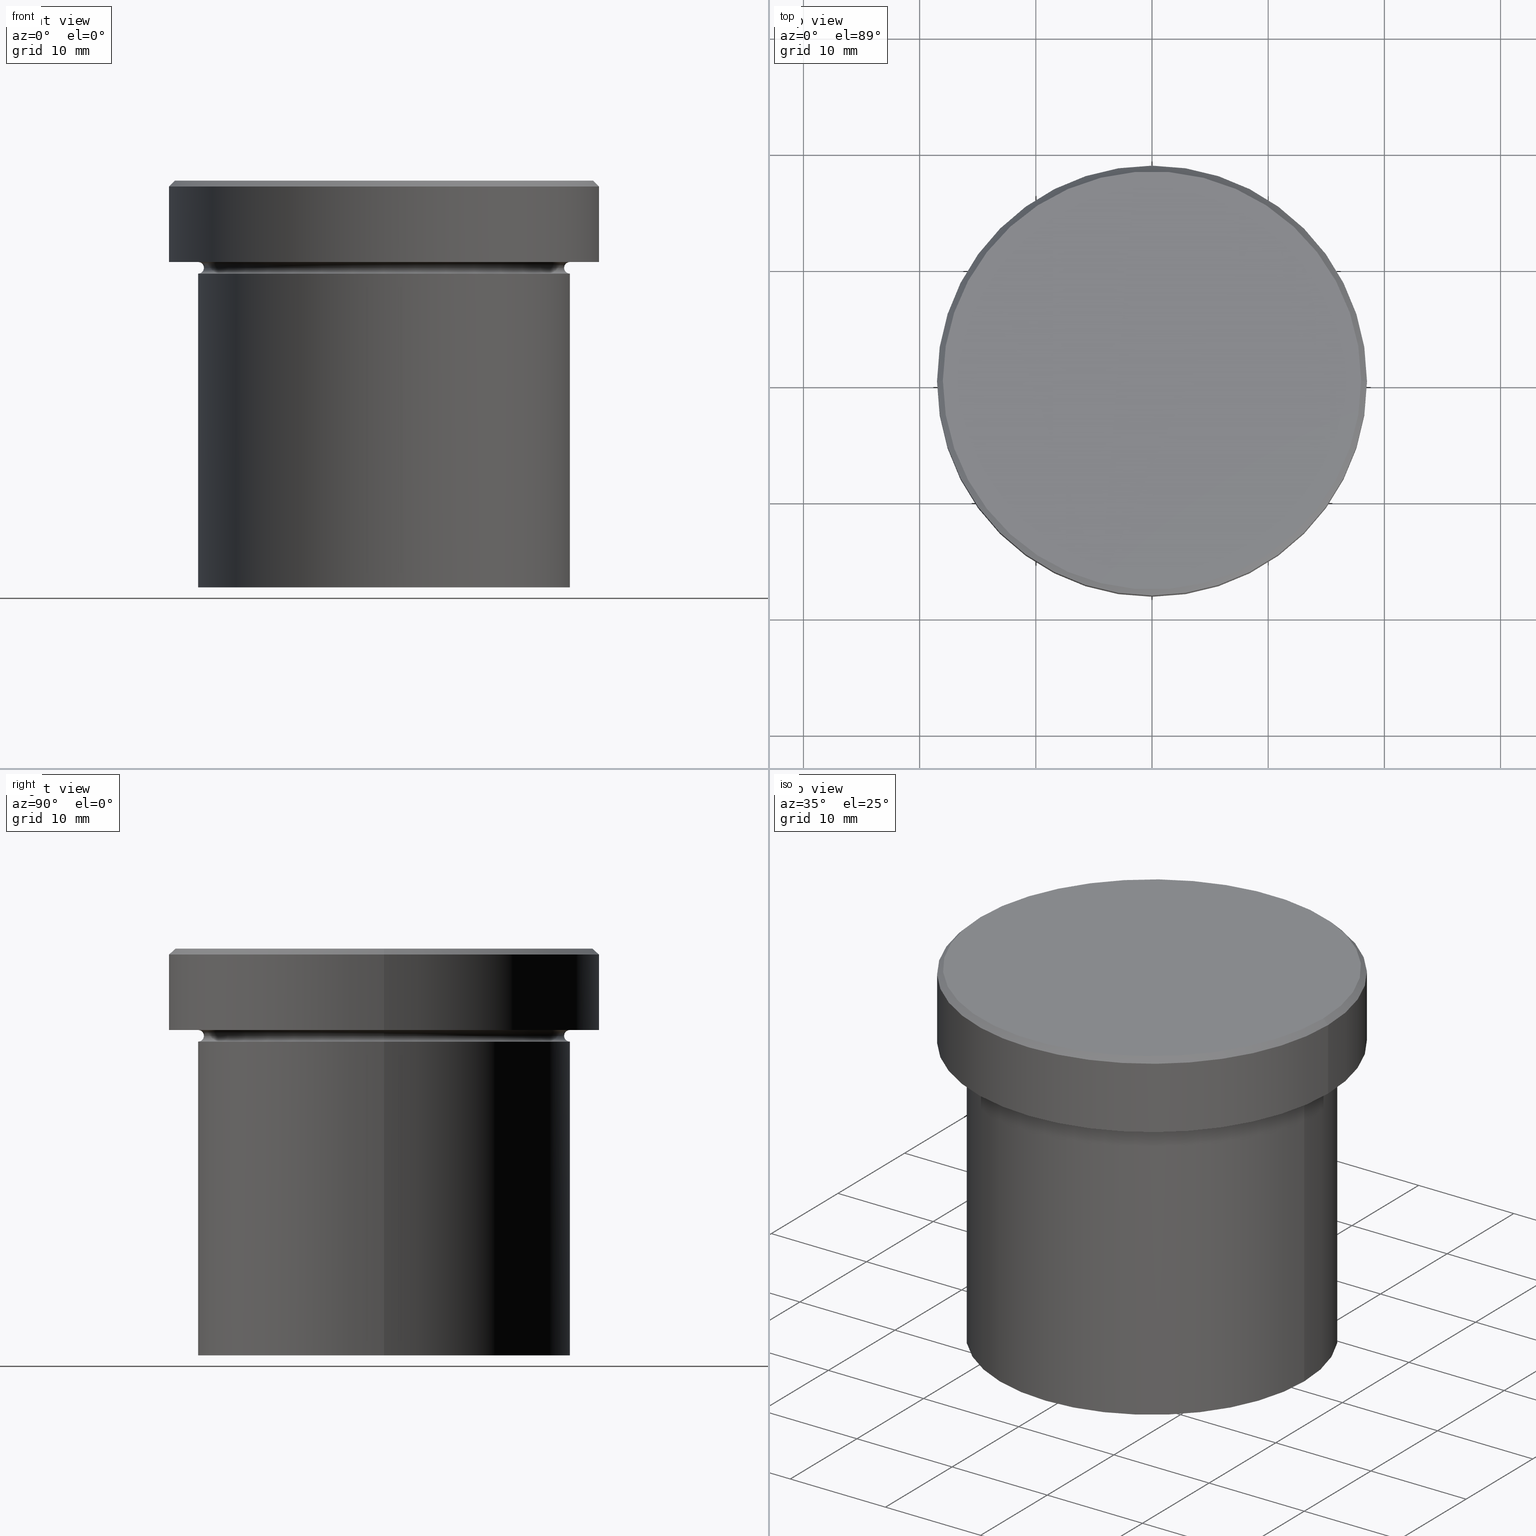
[diagram: canonical four-view strip — front | top / right | iso, engineering-drawing reading convention]
A machine part, canonical four-view strip (front | top / right | iso — engineering-drawing reading convention). The complete STEP part file that produces these views, byte-faithful:
ISO-10303-21;
HEADER;
FILE_DESCRIPTION (( 'STEP AP203' ),
    '1' );
FILE_NAME ('6435.STEP',
    '2024-01-02T20:22:54',
    ( '' ),
    ( '' ),
    'SwSTEP 2.0',
    'SolidWorks 2019',
    '' );
FILE_SCHEMA (( 'CONFIG_CONTROL_DESIGN' ));
ENDSEC;

DATA;
#1 = APPROVAL ( #243, 'NEUR�EN�' ) ;
#2 = ORIENTED_EDGE ( 'NONE', *, *, #174, .T. ) ;
#3 = VERTEX_POINT ( 'NONE', #77 ) ;
#4 = CIRCLE ( 'NONE', #54, 17.99999999999999645 ) ;
#5 = DIRECTION ( 'NONE',  ( -1.000000000000000000, 0.000000000000000000, -0.000000000000000000 ) ) ;
#6 = EDGE_LOOP ( 'NONE', ( #105, #142, #195, #390 ) ) ;
#7 = EDGE_LOOP ( 'NONE', ( #349, #42, #128, #264 ) ) ;
#8 = CARTESIAN_POINT ( 'NONE',  ( 18.50000000000000000, 0.000000000000000000, -0.4999999999999936162 ) ) ;
#9 = VERTEX_POINT ( 'NONE', #338 ) ;
#10 = CC_DESIGN_SECURITY_CLASSIFICATION ( #286, ( #123 ) ) ;
#11 = DIRECTION ( 'NONE',  ( -0.7071067811865549002, 0.000000000000000000, -0.7071067811865402453 ) ) ;
#12 = DIRECTION ( 'NONE',  ( -0.000000000000000000, -0.000000000000000000, 1.000000000000000000 ) ) ;
#13 = CIRCLE ( 'NONE', #188, 18.50000000000000000 ) ;
#14 = CONICAL_SURFACE ( 'NONE', #235, 17.99999999999999645, 0.7853981633974587151 ) ;
#15 = ORIENTED_EDGE ( 'NONE', *, *, #111, .F. ) ;
#16 = APPLICATION_CONTEXT ( 'configuration controlled 3d designs of mechanical parts and assemblies' ) ;
#17 = DATE_TIME_ROLE ( 'creation_date' ) ;
#18 = CARTESIAN_POINT ( 'NONE',  ( -18.50000000000000000, 2.265596578422603396E-15, -6.999999999999998224 ) ) ;
#19 = COORDINATED_UNIVERSAL_TIME_OFFSET ( 1, 0, .AHEAD. ) ;
#20 = CARTESIAN_POINT ( 'NONE',  ( 0.000000000000000000, 0.000000000000000000, -7.500000000000000000 ) ) ;
#21 = PERSON_AND_ORGANIZATION ( #323, #93 ) ;
#22 = DIRECTION ( 'NONE',  ( 1.000000000000000000, 0.000000000000000000, 0.000000000000000000 ) ) ;
#23 = DIRECTION ( 'NONE',  ( 1.000000000000000000, 0.000000000000000000, 0.000000000000000000 ) ) ;
#24 = DIRECTION ( 'NONE',  ( 0.000000000000000000, 0.000000000000000000, -1.000000000000000000 ) ) ;
#25 = AXIS2_PLACEMENT_3D ( 'NONE', #145, #81, #339 ) ;
#26 = EDGE_LOOP ( 'NONE', ( #369, #321 ) ) ;
#27 = CONICAL_SURFACE ( 'NONE', #175, 17.99999999999999645, 0.7853981633974587151 ) ;
#28 = EDGE_CURVE ( 'NONE', #387, #161, #13, .T. ) ;
#29 = CARTESIAN_POINT ( 'NONE',  ( -17.99999999999999645, 0.000000000000000000, 0.000000000000000000 ) ) ;
#30 = ORIENTED_EDGE ( 'NONE', *, *, #167, .T. ) ;
#31 = EDGE_CURVE ( 'NONE', #3, #229, #102, .T. ) ;
#32 = DIRECTION ( 'NONE',  ( -1.000000000000000000, 1.224646799147349509E-16, 0.000000000000000000 ) ) ;
#33 = EDGE_LOOP ( 'NONE', ( #396, #297 ) ) ;
#34 = TOROIDAL_SURFACE ( 'NONE', #158, 16.00000000000000000, 0.5000000000000000000 ) ;
#35 =( GEOMETRIC_REPRESENTATION_CONTEXT ( 3 ) GLOBAL_UNCERTAINTY_ASSIGNED_CONTEXT ( ( #97 ) ) GLOBAL_UNIT_ASSIGNED_CONTEXT ( ( #207, #208, #272 ) ) REPRESENTATION_CONTEXT ( 'NONE', 'WORKASPACE' ) );
#36 = MANIFOLD_SOLID_BREP ( 'Zkosen�1', #384 ) ;
#37 = ORIENTED_EDGE ( 'NONE', *, *, #277, .T. ) ;
#38 = FACE_OUTER_BOUND ( 'NONE', #109, .T. ) ;
#39 = ORIENTED_EDGE ( 'NONE', *, *, #277, .F. ) ;
#40 = ADVANCED_FACE ( 'NONE', ( #346 ), #391, .F. ) ;
#41 = DIRECTION ( 'NONE',  ( -0.000000000000000000, -0.000000000000000000, 1.000000000000000000 ) ) ;
#42 = ORIENTED_EDGE ( 'NONE', *, *, #111, .T. ) ;
#43 = DIRECTION ( 'NONE',  ( -0.000000000000000000, -0.000000000000000000, 1.000000000000000000 ) ) ;
#44 = ADVANCED_FACE ( 'NONE', ( #116 ), #34, .F. ) ;
#45 = FACE_OUTER_BOUND ( 'NONE', #295, .T. ) ;
#46 = APPLICATION_CONTEXT ( 'configuration controlled 3d designs of mechanical parts and assemblies' ) ;
#47 = CIRCLE ( 'NONE', #225, 18.50000000000000000 ) ;
#48 = CC_DESIGN_APPROVAL ( #273, ( #123 ) ) ;
#49 = DIRECTION ( 'NONE',  ( -0.000000000000000000, -1.000000000000000000, -0.000000000000000000 ) ) ;
#50 = PRODUCT_RELATED_PRODUCT_CATEGORY ( 'detail', '', ( #204 ) ) ;
#51 = FACE_OUTER_BOUND ( 'NONE', #358, .T. ) ;
#52 = PERSON_AND_ORGANIZATION_ROLE ( 'design_owner' ) ;
#53 = CARTESIAN_POINT ( 'NONE',  ( 15.50000000000000000, 0.000000000000000000, -7.500000000000000000 ) ) ;
#54 = AXIS2_PLACEMENT_3D ( 'NONE', #300, #12, #365 ) ;
#55 = CARTESIAN_POINT ( 'NONE',  ( -18.50000000000000000, 2.265596578422603396E-15, 0.000000000000000000 ) ) ;
#56 = CARTESIAN_POINT ( 'NONE',  ( 16.00000000000000000, 0.000000000000000000, -8.000000000000000000 ) ) ;
#57 = EDGE_CURVE ( 'NONE', #289, #65, #146, .T. ) ;
#58 = DIRECTION ( 'NONE',  ( 0.000000000000000000, 0.000000000000000000, -1.000000000000000000 ) ) ;
#59 = LOCAL_TIME ( 21, 22, 54.00000000000000000, #313 ) ;
#60 = VERTEX_POINT ( 'NONE', #56 ) ;
#61 = VERTEX_POINT ( 'NONE', #222 ) ;
#62 = CC_DESIGN_DATE_AND_TIME_ASSIGNMENT ( #150, #17, ( #182 ) ) ;
#63 = VERTEX_POINT ( 'NONE', #342 ) ;
#64 = CARTESIAN_POINT ( 'NONE',  ( -16.00000000000000000, 1.959434878635765131E-15, -7.500000000000000000 ) ) ;
#65 = VERTEX_POINT ( 'NONE', #53 ) ;
#66 = TOROIDAL_SURFACE ( 'NONE', #304, 16.00000000000000000, 0.5000000000000000000 ) ;
#67 = VECTOR ( 'NONE', #334, 1000.000000000000000 ) ;
#68 = VERTEX_POINT ( 'NONE', #287 ) ;
#69 = CARTESIAN_POINT ( 'NONE',  ( -17.99999999999999645, 0.000000000000000000, 0.000000000000000000 ) ) ;
#70 = EDGE_CURVE ( 'NONE', #289, #63, #350, .T. ) ;
#71 = DIRECTION ( 'NONE',  ( 1.000000000000000000, 0.000000000000000000, 0.000000000000000000 ) ) ;
#72 = ADVANCED_BREP_SHAPE_REPRESENTATION ( '6435', ( #36, #276 ), #35 ) ;
#73 = CIRCLE ( 'NONE', #260, 15.50000000000000000 ) ;
#74 = ADVANCED_FACE ( 'NONE', ( #283 ), #66, .F. ) ;
#75 = DIRECTION ( 'NONE',  ( 1.000000000000000000, 0.000000000000000000, 0.000000000000000000 ) ) ;
#76 = DIRECTION ( 'NONE',  ( -0.000000000000000000, -0.000000000000000000, 1.000000000000000000 ) ) ;
#77 = CARTESIAN_POINT ( 'NONE',  ( 17.99999999999999645, 2.234980408443919215E-15, 0.000000000000000000 ) ) ;
#78 = AXIS2_PLACEMENT_3D ( 'NONE', #290, #58, #361 ) ;
#79 = CIRCLE ( 'NONE', #127, 16.00000000000000000 ) ;
#80 = CARTESIAN_POINT ( 'NONE',  ( 0.000000000000000000, 0.000000000000000000, -7.500000000000000000 ) ) ;
#81 = DIRECTION ( 'NONE',  ( -1.224646799147353207E-16, 1.000000000000000000, 0.000000000000000000 ) ) ;
#82 = CC_DESIGN_DATE_AND_TIME_ASSIGNMENT ( #120, #370, ( #286 ) ) ;
#83 = PERSON_AND_ORGANIZATION ( #323, #93 ) ;
#84 = DIRECTION ( 'NONE',  ( -1.000000000000000000, 0.000000000000000000, 0.000000000000000000 ) ) ;
#85 = COORDINATED_UNIVERSAL_TIME_OFFSET ( 1, 0, .AHEAD. ) ;
#86 = EDGE_CURVE ( 'NONE', #60, #61, #267, .T. ) ;
#87 = CC_DESIGN_APPROVAL ( #1, ( #182 ) ) ;
#88 = DIRECTION ( 'NONE',  ( 1.000000000000000000, 0.000000000000000000, 0.000000000000000000 ) ) ;
#89 = ADVANCED_FACE ( 'NONE', ( #51 ), #359, .F. ) ;
#90 = CARTESIAN_POINT ( 'NONE',  ( 0.000000000000000000, 0.000000000000000000, -7.500000000000000000 ) ) ;
#91 = DIRECTION ( 'NONE',  ( 1.224646799147353207E-16, 1.000000000000000000, 0.000000000000000000 ) ) ;
#92 = DIRECTION ( 'NONE',  ( 1.000000000000000000, 0.000000000000000000, 0.000000000000000000 ) ) ;
#93 = ORGANIZATION ( 'NEUR�EN�', 'NEUR�EN�', '' ) ;
#94 = ORIENTED_EDGE ( 'NONE', *, *, #230, .T. ) ;
#95 = CARTESIAN_POINT ( 'NONE',  ( 0.000000000000000000, 0.000000000000000000, 0.000000000000000000 ) ) ;
#96 = ORIENTED_EDGE ( 'NONE', *, *, #174, .F. ) ;
#97 = UNCERTAINTY_MEASURE_WITH_UNIT (LENGTH_MEASURE( 1.000000000000000082E-05 ), #207, 'distance_accuracy_value', 'NONE');
#98 = DIRECTION ( 'NONE',  ( -0.000000000000000000, -0.000000000000000000, 1.000000000000000000 ) ) ;
#99 = ORIENTED_EDGE ( 'NONE', *, *, #143, .T. ) ;
#100 = CARTESIAN_POINT ( 'NONE',  ( 0.000000000000000000, 0.000000000000000000, 0.000000000000000000 ) ) ;
#101 = ORIENTED_EDGE ( 'NONE', *, *, #340, .T. ) ;
#102 = CIRCLE ( 'NONE', #318, 17.99999999999999645 ) ;
#103 = AXIS2_PLACEMENT_3D ( 'NONE', #242, #363, #205 ) ;
#104 = CARTESIAN_POINT ( 'NONE',  ( 0.000000000000000000, 0.000000000000000000, -8.000000000000000000 ) ) ;
#105 = ORIENTED_EDGE ( 'NONE', *, *, #57, .F. ) ;
#106 = DIRECTION ( 'NONE',  ( 1.000000000000000000, 0.000000000000000000, 0.000000000000000000 ) ) ;
#107 = CC_DESIGN_PERSON_AND_ORGANIZATION_ASSIGNMENT ( #400, #248, ( #286 ) ) ;
#108 = CARTESIAN_POINT ( 'NONE',  ( 0.000000000000000000, 0.000000000000000000, -6.999999999999999112 ) ) ;
#109 = EDGE_LOOP ( 'NONE', ( #15, #193, #394, #169 ) ) ;
#110 = PERSON_AND_ORGANIZATION_ROLE ( 'design_supplier' ) ;
#111 = EDGE_CURVE ( 'NONE', #139, #161, #114, .T. ) ;
#112 = CIRCLE ( 'NONE', #251, 16.00000000000000000 ) ;
#113 = CALENDAR_DATE ( 2024, 2, 1 ) ;
#114 = LINE ( 'NONE', #55, #407 ) ;
#115 = PERSON_AND_ORGANIZATION_ROLE ( 'creator' ) ;
#116 = FACE_OUTER_BOUND ( 'NONE', #201, .T. ) ;
#117 = SECURITY_CLASSIFICATION_LEVEL ( 'unclassified' ) ;
#118 = CARTESIAN_POINT ( 'NONE',  ( 0.000000000000000000, 0.000000000000000000, -8.000000000000000000 ) ) ;
#119 = ADVANCED_FACE ( 'NONE', ( #308 ), #122, .T. ) ;
#120 = DATE_AND_TIME ( #284, #270 ) ;
#121 = AXIS2_PLACEMENT_3D ( 'NONE', #118, #317, #246 ) ;
#122 = PLANE ( 'NONE',  #234 ) ;
#123 = PRODUCT_DEFINITION_FORMATION_WITH_SPECIFIED_SOURCE ( 'LIBOVOLN�', '', #204, .NOT_KNOWN. ) ;
#124 = PLANE ( 'NONE',  #240 ) ;
#125 = DIRECTION ( 'NONE',  ( 0.7071067811865549002, 8.659560562355021605E-17, -0.7071067811865402453 ) ) ;
#126 = ORIENTED_EDGE ( 'NONE', *, *, #262, .F. ) ;
#127 = AXIS2_PLACEMENT_3D ( 'NONE', #108, #275, #134 ) ;
#128 = ORIENTED_EDGE ( 'NONE', *, *, #162, .T. ) ;
#129 = CARTESIAN_POINT ( 'NONE',  ( -16.00000000000000000, 1.959434878635765131E-15, -35.00000000000000000 ) ) ;
#130 = ORIENTED_EDGE ( 'NONE', *, *, #143, .F. ) ;
#131 = DIRECTION ( 'NONE',  ( 0.000000000000000000, 0.000000000000000000, -1.000000000000000000 ) ) ;
#132 = ORIENTED_EDGE ( 'NONE', *, *, #262, .T. ) ;
#133 = EDGE_CURVE ( 'NONE', #159, #139, #47, .T. ) ;
#134 = DIRECTION ( 'NONE',  ( -1.000000000000000000, 0.000000000000000000, 0.000000000000000000 ) ) ;
#135 = EDGE_LOOP ( 'NONE', ( #156, #271 ) ) ;
#136 = AXIS2_PLACEMENT_3D ( 'NONE', #357, #98, #288 ) ;
#137 = PRODUCT_DEFINITION_SHAPE ( 'NONE', 'NONE',  #182 ) ;
#138 = LINE ( 'NONE', #302, #67 ) ;
#139 = VERTEX_POINT ( 'NONE', #18 ) ;
#140 = LINE ( 'NONE', #237, #366 ) ;
#141 = PERSON_AND_ORGANIZATION ( #323, #93 ) ;
#142 = ORIENTED_EDGE ( 'NONE', *, *, #215, .T. ) ;
#143 = EDGE_CURVE ( 'NONE', #65, #9, #269, .T. ) ;
#144 = APPROVAL_ROLE ( '' ) ;
#145 = CARTESIAN_POINT ( 'NONE',  ( 16.00000000000000000, 1.959434878635765131E-15, -7.500000000000000000 ) ) ;
#146 = CIRCLE ( 'NONE', #335, 15.50000000000000000 ) ;
#147 = AXIS2_PLACEMENT_3D ( 'NONE', #95, #157, #325 ) ;
#148 = CALENDAR_DATE ( 2024, 2, 1 ) ;
#149 = DIRECTION ( 'NONE',  ( -0.000000000000000000, -0.000000000000000000, 1.000000000000000000 ) ) ;
#150 = DATE_AND_TIME ( #148, #198 ) ;
#151 = DIRECTION ( 'NONE',  ( -1.000000000000000000, 0.000000000000000000, 0.000000000000000000 ) ) ;
#152 = VECTOR ( 'NONE', #11, 1000.000000000000114 ) ;
#153 = ORIENTED_EDGE ( 'NONE', *, *, #162, .F. ) ;
#154 = ORIENTED_EDGE ( 'NONE', *, *, #388, .F. ) ;
#155 = DIRECTION ( 'NONE',  ( 1.000000000000000000, 0.000000000000000000, 0.000000000000000000 ) ) ;
#156 = ORIENTED_EDGE ( 'NONE', *, *, #133, .F. ) ;
#157 = DIRECTION ( 'NONE',  ( -0.000000000000000000, -0.000000000000000000, 1.000000000000000000 ) ) ;
#158 = AXIS2_PLACEMENT_3D ( 'NONE', #348, #375, #84 ) ;
#159 = VERTEX_POINT ( 'NONE', #179 ) ;
#160 = CARTESIAN_POINT ( 'NONE',  ( 16.00000000000000000, 0.000000000000000000, -7.500000000000000000 ) ) ;
#161 = VERTEX_POINT ( 'NONE', #379 ) ;
#162 = EDGE_CURVE ( 'NONE', #161, #387, #281, .T. ) ;
#163 = FACE_BOUND ( 'NONE', #26, .T. ) ;
#164 = ORIENTED_EDGE ( 'NONE', *, *, #345, .F. ) ;
#165 = DIRECTION ( 'NONE',  ( -1.000000000000000000, 0.000000000000000000, 0.000000000000000000 ) ) ;
#166 = AXIS2_PLACEMENT_3D ( 'NONE', #160, #327, #131 ) ;
#167 = EDGE_CURVE ( 'NONE', #65, #60, #206, .T. ) ;
#168 = CARTESIAN_POINT ( 'NONE',  ( 0.000000000000000000, 0.000000000000000000, -35.00000000000000000 ) ) ;
#169 = ORIENTED_EDGE ( 'NONE', *, *, #28, .T. ) ;
#170 = CARTESIAN_POINT ( 'NONE',  ( 0.000000000000000000, 0.000000000000000000, 0.000000000000000000 ) ) ;
#171 = ORIENTED_EDGE ( 'NONE', *, *, #354, .F. ) ;
#172 = CARTESIAN_POINT ( 'NONE',  ( -15.50000000000000000, 1.928818708657081344E-15, -7.500000000000000000 ) ) ;
#173 = ORIENTED_EDGE ( 'NONE', *, *, #31, .F. ) ;
#174 = EDGE_CURVE ( 'NONE', #3, #387, #355, .T. ) ;
#175 = AXIS2_PLACEMENT_3D ( 'NONE', #367, #299, #165 ) ;
#176 = APPROVAL_DATE_TIME ( #181, #238 ) ;
#177 = DIRECTION ( 'NONE',  ( 0.000000000000000000, 0.000000000000000000, 1.000000000000000000 ) ) ;
#178 = DIRECTION ( 'NONE',  ( -0.000000000000000000, -0.000000000000000000, 1.000000000000000000 ) ) ;
#179 = CARTESIAN_POINT ( 'NONE',  ( 18.50000000000000000, 0.000000000000000000, -6.999999999999998224 ) ) ;
#180 = VECTOR ( 'NONE', #125, 1000.000000000000114 ) ;
#181 = DATE_AND_TIME ( #347, #372 ) ;
#182 = PRODUCT_DEFINITION ( 'NEZN�M�', '', #123, #383 ) ;
#183 = CARTESIAN_POINT ( 'NONE',  ( -16.00000000000000000, 0.000000000000000000, -7.500000000000000000 ) ) ;
#184 = APPROVAL_DATE_TIME ( #219, #273 ) ;
#185 = CARTESIAN_POINT ( 'NONE',  ( 0.000000000000000000, 0.000000000000000000, 0.000000000000000000 ) ) ;
#186 = DIRECTION ( 'NONE',  ( 0.000000000000000000, 0.000000000000000000, -1.000000000000000000 ) ) ;
#187 = EDGE_CURVE ( 'NONE', #139, #159, #392, .T. ) ;
#188 = AXIS2_PLACEMENT_3D ( 'NONE', #220, #280, #377 ) ;
#189 = CC_DESIGN_APPROVAL ( #238, ( #286 ) ) ;
#190 = FACE_OUTER_BOUND ( 'NONE', #261, .T. ) ;
#191 = ORIENTED_EDGE ( 'NONE', *, *, #354, .T. ) ;
#192 = DIRECTION ( 'NONE',  ( -0.000000000000000000, -0.000000000000000000, 1.000000000000000000 ) ) ;
#193 = ORIENTED_EDGE ( 'NONE', *, *, #187, .T. ) ;
#194 = CYLINDRICAL_SURFACE ( 'NONE', #147, 18.50000000000000000 ) ;
#195 = ORIENTED_EDGE ( 'NONE', *, *, #388, .T. ) ;
#196 = FACE_OUTER_BOUND ( 'NONE', #362, .T. ) ;
#197 = CC_DESIGN_PERSON_AND_ORGANIZATION_ASSIGNMENT ( #21, #52, ( #204 ) ) ;
#198 = LOCAL_TIME ( 21, 22, 54.00000000000000000, #19 ) ;
#199 = ORIENTED_EDGE ( 'NONE', *, *, #57, .T. ) ;
#200 = CYLINDRICAL_SURFACE ( 'NONE', #336, 18.50000000000000000 ) ;
#201 = EDGE_LOOP ( 'NONE', ( #130, #37, #266, #329 ) ) ;
#202 = FACE_OUTER_BOUND ( 'NONE', #228, .T. ) ;
#203 = ADVANCED_FACE ( 'NONE', ( #196 ), #257, .T. ) ;
#204 = PRODUCT ( '6435', '6435', '', ( #278 ) ) ;
#205 = DIRECTION ( 'NONE',  ( 1.000000000000000000, 0.000000000000000000, 0.000000000000000000 ) ) ;
#206 = CIRCLE ( 'NONE', #166, 0.5000000000000004441 ) ;
#207 =( LENGTH_UNIT ( ) NAMED_UNIT ( * ) SI_UNIT ( .MILLI., .METRE. ) );
#208 =( NAMED_UNIT ( * ) PLANE_ANGLE_UNIT ( ) SI_UNIT ( $, .RADIAN. ) );
#209 = ADVANCED_FACE ( 'NONE', ( #190 ), #233, .T. ) ;
#210 = AXIS2_PLACEMENT_3D ( 'NONE', #285, #244, #371 ) ;
#211 = CIRCLE ( 'NONE', #385, 16.00000000000000000 ) ;
#212 = DIRECTION ( 'NONE',  ( 1.000000000000000000, 0.000000000000000000, 0.000000000000000000 ) ) ;
#213 = PERSON_AND_ORGANIZATION ( #323, #93 ) ;
#214 = DIRECTION ( 'NONE',  ( -0.000000000000000000, -0.000000000000000000, 1.000000000000000000 ) ) ;
#215 = EDGE_CURVE ( 'NONE', #289, #61, #305, .T. ) ;
#216 = APPROVAL_DATE_TIME ( #310, #1 ) ;
#217 = AXIS2_PLACEMENT_3D ( 'NONE', #183, #49, #186 ) ;
#218 = AXIS2_PLACEMENT_3D ( 'NONE', #64, #91, #32 ) ;
#219 = DATE_AND_TIME ( #282, #408 ) ;
#220 = CARTESIAN_POINT ( 'NONE',  ( 0.000000000000000000, 0.000000000000000000, -0.4999999999999936162 ) ) ;
#221 = COORDINATED_UNIVERSAL_TIME_OFFSET ( 1, 0, .AHEAD. ) ;
#222 = CARTESIAN_POINT ( 'NONE',  ( -16.00000000000000000, 1.959434878635765131E-15, -8.000000000000000000 ) ) ;
#223 = ORIENTED_EDGE ( 'NONE', *, *, #215, .F. ) ;
#224 = ADVANCED_FACE ( 'NONE', ( #38 ), #200, .T. ) ;
#225 = AXIS2_PLACEMENT_3D ( 'NONE', #406, #374, #212 ) ;
#226 = VECTOR ( 'NONE', #322, 1000.000000000000000 ) ;
#227 = LINE ( 'NONE', #352, #226 ) ;
#228 = EDGE_LOOP ( 'NONE', ( #96, #164, #132, #326 ) ) ;
#229 = VERTEX_POINT ( 'NONE', #29 ) ;
#230 = EDGE_CURVE ( 'NONE', #232, #61, #227, .T. ) ;
#231 = CARTESIAN_POINT ( 'NONE',  ( 17.99999999999999645, 2.204364238465235033E-15, 0.000000000000000000 ) ) ;
#232 = VERTEX_POINT ( 'NONE', #129 ) ;
#233 = CYLINDRICAL_SURFACE ( 'NONE', #351, 16.00000000000000000 ) ;
#234 = AXIS2_PLACEMENT_3D ( 'NONE', #185, #315, #23 ) ;
#235 = AXIS2_PLACEMENT_3D ( 'NONE', #170, #301, #330 ) ;
#236 = ORIENTED_EDGE ( 'NONE', *, *, #337, .F. ) ;
#237 = CARTESIAN_POINT ( 'NONE',  ( 16.00000000000000000, 0.000000000000000000, 0.000000000000000000 ) ) ;
#238 = APPROVAL ( #378, 'NEUR�EN�' ) ;
#239 = DIRECTION ( 'NONE',  ( -0.000000000000000000, -0.000000000000000000, 1.000000000000000000 ) ) ;
#240 = AXIS2_PLACEMENT_3D ( 'NONE', #293, #256, #5 ) ;
#241 = ADVANCED_FACE ( 'NONE', ( #263 ), #194, .T. ) ;
#242 = CARTESIAN_POINT ( 'NONE',  ( 0.000000000000000000, 0.000000000000000000, 0.000000000000000000 ) ) ;
#243 = APPROVAL_STATUS ( 'not_yet_approved' ) ;
#244 = DIRECTION ( 'NONE',  ( -0.000000000000000000, -0.000000000000000000, 1.000000000000000000 ) ) ;
#245 = CIRCLE ( 'NONE', #312, 16.00000000000000000 ) ;
#246 = DIRECTION ( 'NONE',  ( 1.000000000000000000, 0.000000000000000000, 0.000000000000000000 ) ) ;
#247 = APPROVAL_ROLE ( '' ) ;
#248 = PERSON_AND_ORGANIZATION_ROLE ( 'classification_officer' ) ;
#249 = DIRECTION ( 'NONE',  ( -0.000000000000000000, -0.000000000000000000, 1.000000000000000000 ) ) ;
#250 = AXIS2_PLACEMENT_3D ( 'NONE', #90, #24, #151 ) ;
#251 = AXIS2_PLACEMENT_3D ( 'NONE', #368, #76, #393 ) ;
#252 = APPROVAL_ROLE ( '' ) ;
#253 = ADVANCED_FACE ( 'NONE', ( #163, #409 ), #124, .T. ) ;
#254 = DIRECTION ( 'NONE',  ( 1.000000000000000000, 0.000000000000000000, 0.000000000000000000 ) ) ;
#255 = ADVANCED_FACE ( 'NONE', ( #45 ), #296, .T. ) ;
#256 = DIRECTION ( 'NONE',  ( 0.000000000000000000, 0.000000000000000000, -1.000000000000000000 ) ) ;
#257 = PLANE ( 'NONE',  #402 ) ;
#258 = EDGE_LOOP ( 'NONE', ( #173, #2, #153, #126 ) ) ;
#259 = EDGE_CURVE ( 'NONE', #9, #63, #112, .T. ) ;
#260 = AXIS2_PLACEMENT_3D ( 'NONE', #331, #41, #71 ) ;
#261 = EDGE_LOOP ( 'NONE', ( #324, #191, #101, #154 ) ) ;
#262 = EDGE_CURVE ( 'NONE', #229, #161, #364, .T. ) ;
#263 = FACE_OUTER_BOUND ( 'NONE', #7, .T. ) ;
#264 = ORIENTED_EDGE ( 'NONE', *, *, #333, .F. ) ;
#265 = DIRECTION ( 'NONE',  ( -1.000000000000000000, 0.000000000000000000, -0.000000000000000000 ) ) ;
#266 = ORIENTED_EDGE ( 'NONE', *, *, #70, .T. ) ;
#267 = CIRCLE ( 'NONE', #121, 16.00000000000000000 ) ;
#268 = DIRECTION ( 'NONE',  ( 1.000000000000000000, 0.000000000000000000, 0.000000000000000000 ) ) ;
#269 = CIRCLE ( 'NONE', #25, 0.5000000000000004441 ) ;
#270 = LOCAL_TIME ( 21, 22, 54.00000000000000000, #221 ) ;
#271 = ORIENTED_EDGE ( 'NONE', *, *, #187, .F. ) ;
#272 =( NAMED_UNIT ( * ) SI_UNIT ( $, .STERADIAN. ) SOLID_ANGLE_UNIT ( ) );
#273 = APPROVAL ( #341, 'NEUR�EN�' ) ;
#274 = DIRECTION ( 'NONE',  ( -0.000000000000000000, -0.000000000000000000, 1.000000000000000000 ) ) ;
#275 = DIRECTION ( 'NONE',  ( -0.000000000000000000, -0.000000000000000000, 1.000000000000000000 ) ) ;
#276 = AXIS2_PLACEMENT_3D ( 'NONE', #314, #177, #88 ) ;
#277 = EDGE_CURVE ( 'NONE', #65, #289, #73, .T. ) ;
#278 = MECHANICAL_CONTEXT ( 'NONE', #16, 'mechanical' ) ;
#279 = COORDINATED_UNIVERSAL_TIME_OFFSET ( 1, 0, .AHEAD. ) ;
#280 = DIRECTION ( 'NONE',  ( 0.000000000000000000, 0.000000000000000000, -1.000000000000000000 ) ) ;
#281 = CIRCLE ( 'NONE', #78, 18.50000000000000000 ) ;
#282 = CALENDAR_DATE ( 2024, 2, 1 ) ;
#283 = FACE_OUTER_BOUND ( 'NONE', #6, .T. ) ;
#284 = CALENDAR_DATE ( 2024, 2, 1 ) ;
#285 = CARTESIAN_POINT ( 'NONE',  ( 0.000000000000000000, 0.000000000000000000, -7.500000000000000000 ) ) ;
#286 = SECURITY_CLASSIFICATION ( '', '', #117 ) ;
#287 = CARTESIAN_POINT ( 'NONE',  ( 16.00000000000000000, 0.000000000000000000, -35.00000000000000000 ) ) ;
#288 = DIRECTION ( 'NONE',  ( 1.000000000000000000, 0.000000000000000000, 0.000000000000000000 ) ) ;
#289 = VERTEX_POINT ( 'NONE', #172 ) ;
#290 = CARTESIAN_POINT ( 'NONE',  ( 0.000000000000000000, 0.000000000000000000, -0.4999999999999936162 ) ) ;
#291 = ORIENTED_EDGE ( 'NONE', *, *, #316, .T. ) ;
#292 = CIRCLE ( 'NONE', #343, 16.00000000000000000 ) ;
#293 = CARTESIAN_POINT ( 'NONE',  ( 0.000000000000000000, 18.50000000000000000, -6.999999999999999112 ) ) ;
#294 = EDGE_LOOP ( 'NONE', ( #199, #99, #236, #353 ) ) ;
#295 = EDGE_LOOP ( 'NONE', ( #291, #94, #303, #356 ) ) ;
#296 = CYLINDRICAL_SURFACE ( 'NONE', #103, 16.00000000000000000 ) ;
#297 = ORIENTED_EDGE ( 'NONE', *, *, #31, .T. ) ;
#298 = ADVANCED_FACE ( 'NONE', ( #398 ), #27, .T. ) ;
#299 = DIRECTION ( 'NONE',  ( 0.000000000000000000, 0.000000000000000000, -1.000000000000000000 ) ) ;
#300 = CARTESIAN_POINT ( 'NONE',  ( 0.000000000000000000, 0.000000000000000000, 0.000000000000000000 ) ) ;
#301 = DIRECTION ( 'NONE',  ( 0.000000000000000000, 0.000000000000000000, -1.000000000000000000 ) ) ;
#302 = CARTESIAN_POINT ( 'NONE',  ( 18.50000000000000000, 0.000000000000000000, 0.000000000000000000 ) ) ;
#303 = ORIENTED_EDGE ( 'NONE', *, *, #86, .F. ) ;
#304 = AXIS2_PLACEMENT_3D ( 'NONE', #80, #249, #254 ) ;
#305 = CIRCLE ( 'NONE', #218, 0.5000000000000004441 ) ;
#306 = SHAPE_DEFINITION_REPRESENTATION ( #137, #72 ) ;
#307 = APPLICATION_PROTOCOL_DEFINITION ( 'international standard', 'config_control_design', 1994, #46 ) ;
#308 = FACE_OUTER_BOUND ( 'NONE', #33, .T. ) ;
#309 = CC_DESIGN_PERSON_AND_ORGANIZATION_ASSIGNMENT ( #141, #110, ( #123 ) ) ;
#310 = DATE_AND_TIME ( #113, #59 ) ;
#311 = DIRECTION ( 'NONE',  ( 1.000000000000000000, 0.000000000000000000, 0.000000000000000000 ) ) ;
#312 = AXIS2_PLACEMENT_3D ( 'NONE', #168, #274, #268 ) ;
#313 = COORDINATED_UNIVERSAL_TIME_OFFSET ( 1, 0, .AHEAD. ) ;
#314 = CARTESIAN_POINT ( 'NONE',  ( 0.000000000000000000, 0.000000000000000000, 0.000000000000000000 ) ) ;
#315 = DIRECTION ( 'NONE',  ( 0.000000000000000000, -0.000000000000000000, 1.000000000000000000 ) ) ;
#316 = EDGE_CURVE ( 'NONE', #68, #232, #245, .T. ) ;
#317 = DIRECTION ( 'NONE',  ( -0.000000000000000000, -0.000000000000000000, 1.000000000000000000 ) ) ;
#318 = AXIS2_PLACEMENT_3D ( 'NONE', #401, #214, #22 ) ;
#319 = APPROVAL_PERSON_ORGANIZATION ( #344, #238, #247 ) ;
#320 = CARTESIAN_POINT ( 'NONE',  ( 0.000000000000000000, 0.000000000000000000, 0.000000000000000000 ) ) ;
#321 = ORIENTED_EDGE ( 'NONE', *, *, #259, .T. ) ;
#322 = DIRECTION ( 'NONE',  ( -0.000000000000000000, -0.000000000000000000, 1.000000000000000000 ) ) ;
#323 = PERSON ( 'NEUR�EN�', 'NEUR�EN�', 'NEUR�EN�', ('NEUR�EN�'), ('NEUR�EN�'), ('NEUR�EN�') ) ;
#324 = ORIENTED_EDGE ( 'NONE', *, *, #230, .F. ) ;
#325 = DIRECTION ( 'NONE',  ( 1.000000000000000000, 0.000000000000000000, 0.000000000000000000 ) ) ;
#326 = ORIENTED_EDGE ( 'NONE', *, *, #28, .F. ) ;
#327 = DIRECTION ( 'NONE',  ( 0.000000000000000000, -1.000000000000000000, 0.000000000000000000 ) ) ;
#328 = ORIENTED_EDGE ( 'NONE', *, *, #86, .T. ) ;
#329 = ORIENTED_EDGE ( 'NONE', *, *, #259, .F. ) ;
#330 = DIRECTION ( 'NONE',  ( -1.000000000000000000, 0.000000000000000000, 0.000000000000000000 ) ) ;
#331 = CARTESIAN_POINT ( 'NONE',  ( 0.000000000000000000, 0.000000000000000000, -7.500000000000000000 ) ) ;
#332 = APPROVAL_PERSON_ORGANIZATION ( #213, #1, #252 ) ;
#333 = EDGE_CURVE ( 'NONE', #159, #387, #138, .T. ) ;
#334 = DIRECTION ( 'NONE',  ( -0.000000000000000000, -0.000000000000000000, 1.000000000000000000 ) ) ;
#335 = AXIS2_PLACEMENT_3D ( 'NONE', #20, #149, #311 ) ;
#336 = AXIS2_PLACEMENT_3D ( 'NONE', #320, #192, #155 ) ;
#337 = EDGE_CURVE ( 'NONE', #63, #9, #79, .T. ) ;
#338 = CARTESIAN_POINT ( 'NONE',  ( 16.00000000000000000, 1.959434878635765131E-15, -6.999999999999999112 ) ) ;
#339 = DIRECTION ( 'NONE',  ( -1.000000000000000000, -1.224646799147349509E-16, 0.000000000000000000 ) ) ;
#340 = EDGE_CURVE ( 'NONE', #68, #60, #140, .T. ) ;
#341 = APPROVAL_STATUS ( 'not_yet_approved' ) ;
#342 = CARTESIAN_POINT ( 'NONE',  ( -16.00000000000000000, 0.000000000000000000, -6.999999999999999112 ) ) ;
#343 = AXIS2_PLACEMENT_3D ( 'NONE', #104, #239, #75 ) ;
#344 = PERSON_AND_ORGANIZATION ( #323, #93 ) ;
#345 = EDGE_CURVE ( 'NONE', #229, #3, #4, .T. ) ;
#346 = FACE_OUTER_BOUND ( 'NONE', #294, .T. ) ;
#347 = CALENDAR_DATE ( 2024, 2, 1 ) ;
#348 = CARTESIAN_POINT ( 'NONE',  ( 0.000000000000000000, 0.000000000000000000, -7.500000000000000000 ) ) ;
#349 = ORIENTED_EDGE ( 'NONE', *, *, #133, .T. ) ;
#350 = CIRCLE ( 'NONE', #217, 0.5000000000000004441 ) ;
#351 = AXIS2_PLACEMENT_3D ( 'NONE', #100, #389, #92 ) ;
#352 = CARTESIAN_POINT ( 'NONE',  ( -16.00000000000000000, 1.959434878635765131E-15, 0.000000000000000000 ) ) ;
#353 = ORIENTED_EDGE ( 'NONE', *, *, #70, .F. ) ;
#354 = EDGE_CURVE ( 'NONE', #232, #68, #211, .T. ) ;
#355 = LINE ( 'NONE', #231, #180 ) ;
#356 = ORIENTED_EDGE ( 'NONE', *, *, #340, .F. ) ;
#357 = CARTESIAN_POINT ( 'NONE',  ( 0.000000000000000000, 0.000000000000000000, -6.999999999999998224 ) ) ;
#358 = EDGE_LOOP ( 'NONE', ( #223, #39, #30, #328 ) ) ;
#359 = TOROIDAL_SURFACE ( 'NONE', #210, 16.00000000000000000, 0.5000000000000000000 ) ;
#360 = APPROVAL_PERSON_ORGANIZATION ( #83, #273, #144 ) ;
#361 = DIRECTION ( 'NONE',  ( 1.000000000000000000, 0.000000000000000000, 0.000000000000000000 ) ) ;
#362 = EDGE_LOOP ( 'NONE', ( #381, #171 ) ) ;
#363 = DIRECTION ( 'NONE',  ( -0.000000000000000000, -0.000000000000000000, 1.000000000000000000 ) ) ;
#364 = LINE ( 'NONE', #69, #152 ) ;
#365 = DIRECTION ( 'NONE',  ( 1.000000000000000000, 0.000000000000000000, 0.000000000000000000 ) ) ;
#366 = VECTOR ( 'NONE', #43, 1000.000000000000000 ) ;
#367 = CARTESIAN_POINT ( 'NONE',  ( 0.000000000000000000, 0.000000000000000000, 0.000000000000000000 ) ) ;
#368 = CARTESIAN_POINT ( 'NONE',  ( 0.000000000000000000, 0.000000000000000000, -6.999999999999999112 ) ) ;
#369 = ORIENTED_EDGE ( 'NONE', *, *, #337, .T. ) ;
#370 = DATE_TIME_ROLE ( 'classification_date' ) ;
#371 = DIRECTION ( 'NONE',  ( 1.000000000000000000, 0.000000000000000000, 0.000000000000000000 ) ) ;
#372 = LOCAL_TIME ( 21, 22, 54.00000000000000000, #85 ) ;
#373 = APPLICATION_PROTOCOL_DEFINITION ( 'international standard', 'config_control_design', 1994, #16 ) ;
#374 = DIRECTION ( 'NONE',  ( -0.000000000000000000, -0.000000000000000000, 1.000000000000000000 ) ) ;
#375 = DIRECTION ( 'NONE',  ( 0.000000000000000000, 0.000000000000000000, -1.000000000000000000 ) ) ;
#376 = PERSON_AND_ORGANIZATION_ROLE ( 'creator' ) ;
#377 = DIRECTION ( 'NONE',  ( 1.000000000000000000, 0.000000000000000000, 0.000000000000000000 ) ) ;
#378 = APPROVAL_STATUS ( 'not_yet_approved' ) ;
#379 = CARTESIAN_POINT ( 'NONE',  ( -18.50000000000000000, 2.265596578422603396E-15, -0.4999999999999936162 ) ) ;
#380 = CARTESIAN_POINT ( 'NONE',  ( 0.000000000000000000, 16.00000000000000000, -35.00000000000000000 ) ) ;
#381 = ORIENTED_EDGE ( 'NONE', *, *, #316, .F. ) ;
#382 = CC_DESIGN_PERSON_AND_ORGANIZATION_ASSIGNMENT ( #404, #115, ( #123 ) ) ;
#383 = DESIGN_CONTEXT ( 'detailed design', #46, 'design' ) ;
#384 = CLOSED_SHELL ( 'NONE', ( #298, #40, #74, #255, #241, #203, #119, #224, #253, #209, #89, #44, #403 ) ) ;
#385 = AXIS2_PLACEMENT_3D ( 'NONE', #395, #397, #106 ) ;
#386 = DIRECTION ( 'NONE',  ( 0.000000000000000000, 0.000000000000000000, -1.000000000000000000 ) ) ;
#387 = VERTEX_POINT ( 'NONE', #8 ) ;
#388 = EDGE_CURVE ( 'NONE', #61, #60, #292, .T. ) ;
#389 = DIRECTION ( 'NONE',  ( -0.000000000000000000, -0.000000000000000000, 1.000000000000000000 ) ) ;
#390 = ORIENTED_EDGE ( 'NONE', *, *, #167, .F. ) ;
#391 = TOROIDAL_SURFACE ( 'NONE', #250, 16.00000000000000000, 0.5000000000000000000 ) ;
#392 = CIRCLE ( 'NONE', #136, 18.50000000000000000 ) ;
#393 = DIRECTION ( 'NONE',  ( -1.000000000000000000, 0.000000000000000000, 0.000000000000000000 ) ) ;
#394 = ORIENTED_EDGE ( 'NONE', *, *, #333, .T. ) ;
#395 = CARTESIAN_POINT ( 'NONE',  ( 0.000000000000000000, 0.000000000000000000, -35.00000000000000000 ) ) ;
#396 = ORIENTED_EDGE ( 'NONE', *, *, #345, .T. ) ;
#397 = DIRECTION ( 'NONE',  ( -0.000000000000000000, -0.000000000000000000, 1.000000000000000000 ) ) ;
#398 = FACE_OUTER_BOUND ( 'NONE', #258, .T. ) ;
#399 = CC_DESIGN_PERSON_AND_ORGANIZATION_ASSIGNMENT ( #405, #376, ( #182 ) ) ;
#400 = PERSON_AND_ORGANIZATION ( #323, #93 ) ;
#401 = CARTESIAN_POINT ( 'NONE',  ( 0.000000000000000000, 0.000000000000000000, 0.000000000000000000 ) ) ;
#402 = AXIS2_PLACEMENT_3D ( 'NONE', #380, #386, #265 ) ;
#403 = ADVANCED_FACE ( 'NONE', ( #202 ), #14, .T. ) ;
#404 = PERSON_AND_ORGANIZATION ( #323, #93 ) ;
#405 = PERSON_AND_ORGANIZATION ( #323, #93 ) ;
#406 = CARTESIAN_POINT ( 'NONE',  ( 0.000000000000000000, 0.000000000000000000, -6.999999999999998224 ) ) ;
#407 = VECTOR ( 'NONE', #178, 1000.000000000000000 ) ;
#408 = LOCAL_TIME ( 21, 22, 54.00000000000000000, #279 ) ;
#409 = FACE_OUTER_BOUND ( 'NONE', #135, .T. ) ;
ENDSEC;
END-ISO-10303-21;
